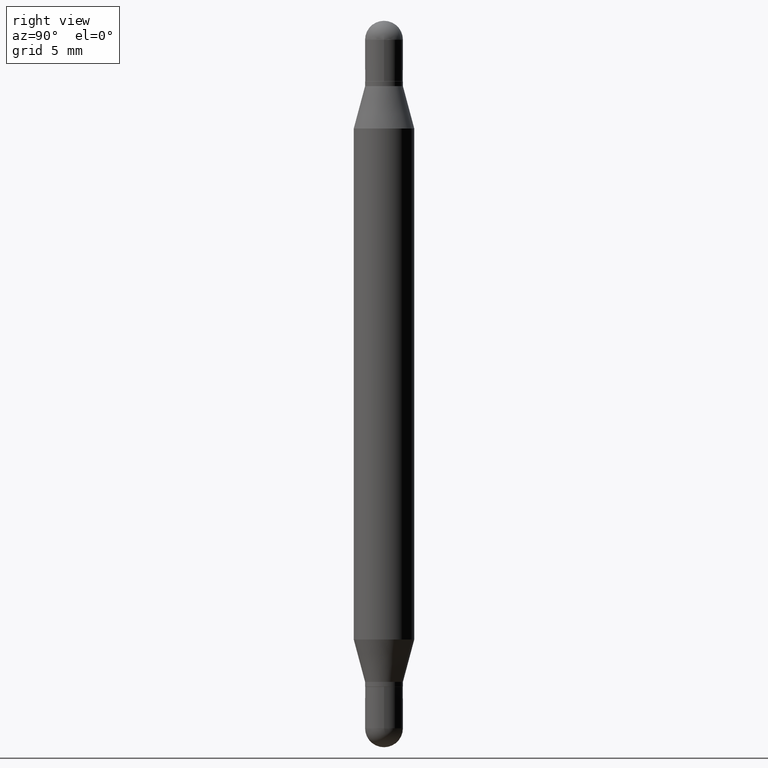
[diagram: clean part render]
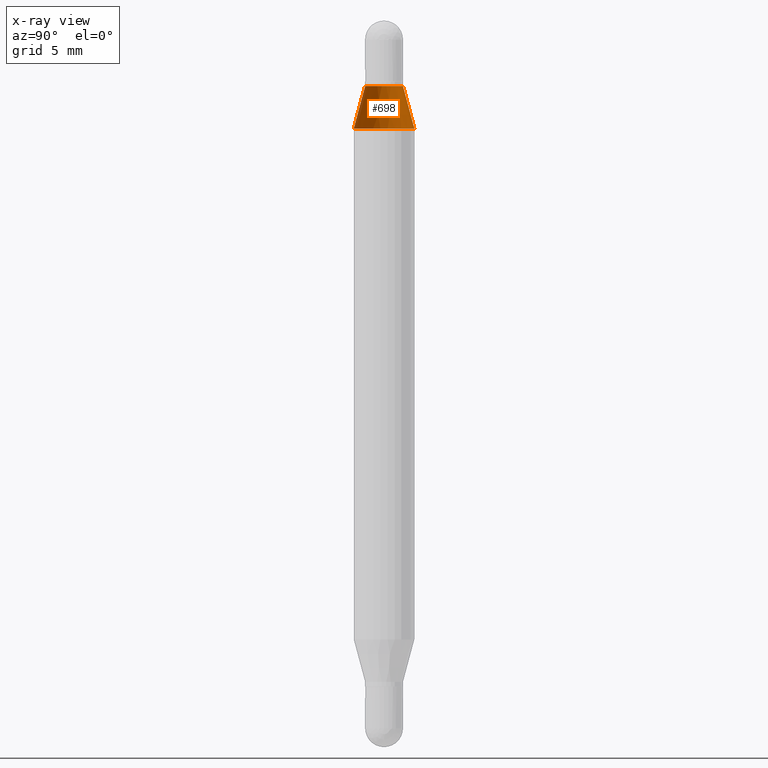
[diagram: x-ray — body ghosted, one internal face saturated and labeled with its STEP entity id]
A machine part, right view, then the same camera in x-ray: the body is ghosted and one INTERNAL B-rep face — a face not visible from any outside direction — is saturated and labeled: STEP entity #698.
In plain terms, the highlighted conical surface has half-angle 15 deg.
Its self-contained STEP definition (entity closure, byte-faithful):
#21 = CIRCLE ( 'NONE', #634, 0.06250000000000000000 ) ;
#82 = CIRCLE ( 'NONE', #96, 0.03904999999999964749 ) ;
#89 = DIRECTION ( 'NONE',  ( -6.982962677686266711E-15, -1.000000000000000000, 3.497884755011892359E-15 ) ) ;
#90 = VECTOR ( 'NONE', #216, 39.37007874015748854 ) ;
#96 = AXIS2_PLACEMENT_3D ( 'NONE', #991, #885, #299 ) ;
#112 = DIRECTION ( 'NONE',  ( 2.445629184337248949E-29, 3.479844137619810818E-15, 1.000000000000000000 ) ) ;
#138 = DIRECTION ( 'NONE',  ( -1.807323732225328562E-15, -0.2588190451025247363, -0.9659258262890673130 ) ) ;
#216 = DIRECTION ( 'NONE',  ( 1.775627540710963525E-15, 0.2588190451025179639, -0.9659258262890690894 ) ) ;
#252 = VERTEX_POINT ( 'NONE', #823 ) ;
#255 = FACE_OUTER_BOUND ( 'NONE', #603, .T. ) ;
#292 = VERTEX_POINT ( 'NONE', #635 ) ;
#299 = DIRECTION ( 'NONE',  ( -6.982962677686266711E-15, -1.000000000000000000, 3.497884755011892359E-15 ) ) ;
#370 = LINE ( 'NONE', #710, #90 ) ;
#382 = DIRECTION ( 'NONE',  ( -6.982962677686265922E-15, -1.000000000000000000, 3.278217592397115862E-15 ) ) ;
#392 = ORIENTED_EDGE ( 'NONE', *, *, #1100, .F. ) ;
#423 = DIRECTION ( 'NONE',  ( -2.445629184337248949E-29, -3.479844137619810818E-15, -1.000000000000000000 ) ) ;
#446 = EDGE_CURVE ( 'NONE', #252, #923, #21, .T. ) ;
#513 = VECTOR ( 'NONE', #138, 39.37007874015748854 ) ;
#542 = CARTESIAN_POINT ( 'NONE',  ( 3.124250706487097646E-29, -7.828787041729109440E-16, -0.2225165914374913068 ) ) ;
#601 = CONICAL_SURFACE ( 'NONE', #818, 0.03904999999999964749, 0.2617993877991500740 ) ;
#603 = EDGE_LOOP ( 'NONE', ( #988, #956, #836, #392 ) ) ;
#630 = CARTESIAN_POINT ( 'NONE',  ( -2.726846925636128250E-16, -0.03905000000000012628, -0.1349999999999999256 ) ) ;
#634 = AXIS2_PLACEMENT_3D ( 'NONE', #542, #112, #382 ) ;
#635 = CARTESIAN_POINT ( 'NONE',  ( 2.679024468130094147E-16, 0.03904999999999916871, -0.1350000000000002032 ) ) ;
#663 = CARTESIAN_POINT ( 'NONE',  ( -2.726846925636128250E-16, -0.03905000000000012628, -0.1349999999999999256 ) ) ;
#698 = ADVANCED_FACE ( 'NONE', ( #255 ), #601, .T. ) ;
#710 = CARTESIAN_POINT ( 'NONE',  ( 2.679024468130092668E-16, 0.03904999999999916871, -0.1350000000000002032 ) ) ;
#772 = CARTESIAN_POINT ( 'NONE',  ( 3.338283836620345741E-29, -4.783346065146894413E-16, -0.1350000000000000644 ) ) ;
#809 = EDGE_CURVE ( 'NONE', #292, #252, #370, .T. ) ;
#810 = VERTEX_POINT ( 'NONE', #630 ) ;
#818 = AXIS2_PLACEMENT_3D ( 'NONE', #772, #423, #89 ) ;
#823 = CARTESIAN_POINT ( 'NONE',  ( 4.287811248607519320E-16, 0.06249999999999921590, -0.2225165914374915288 ) ) ;
#836 = ORIENTED_EDGE ( 'NONE', *, *, #446, .T. ) ;
#885 = DIRECTION ( 'NONE',  ( 2.445629184337248949E-29, 3.479844137619810818E-15, 1.000000000000000000 ) ) ;
#923 = VERTEX_POINT ( 'NONE', #1064 ) ;
#926 = EDGE_CURVE ( 'NONE', #292, #810, #82, .T. ) ;
#956 = ORIENTED_EDGE ( 'NONE', *, *, #809, .T. ) ;
#988 = ORIENTED_EDGE ( 'NONE', *, *, #926, .F. ) ;
#991 = CARTESIAN_POINT ( 'NONE',  ( 3.338283836620345741E-29, -4.783346065146894413E-16, -0.1350000000000000644 ) ) ;
#1015 = LINE ( 'NONE', #663, #513 ) ;
#1064 = CARTESIAN_POINT ( 'NONE',  ( -4.364351673553603615E-16, -0.06250000000000079103, -0.2225165914374911125 ) ) ;
#1100 = EDGE_CURVE ( 'NONE', #810, #923, #1015, .T. ) ;